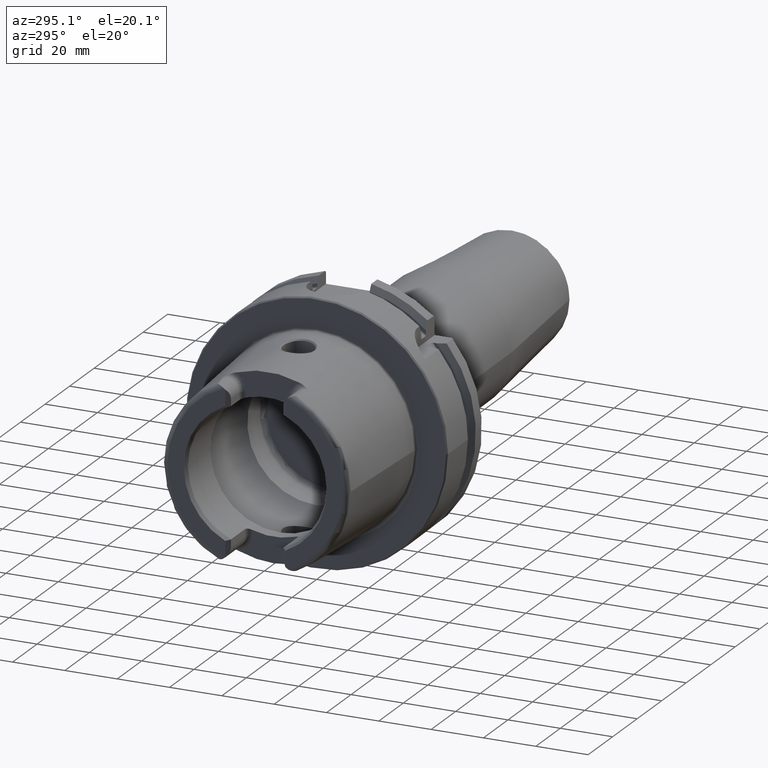
[diagram: clean part render]
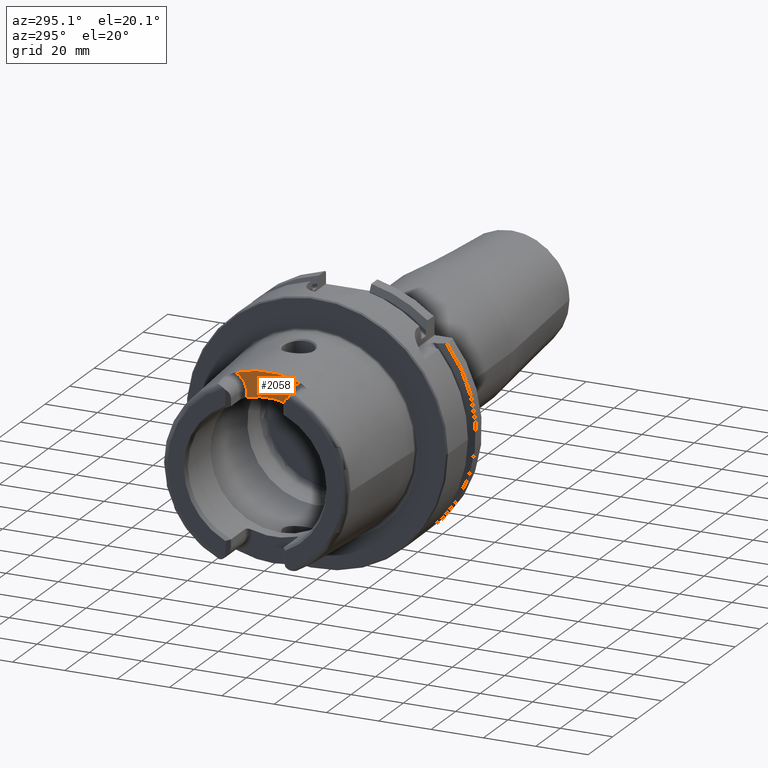
[diagram: same view with one face highlighted and labeled with its STEP entity id]
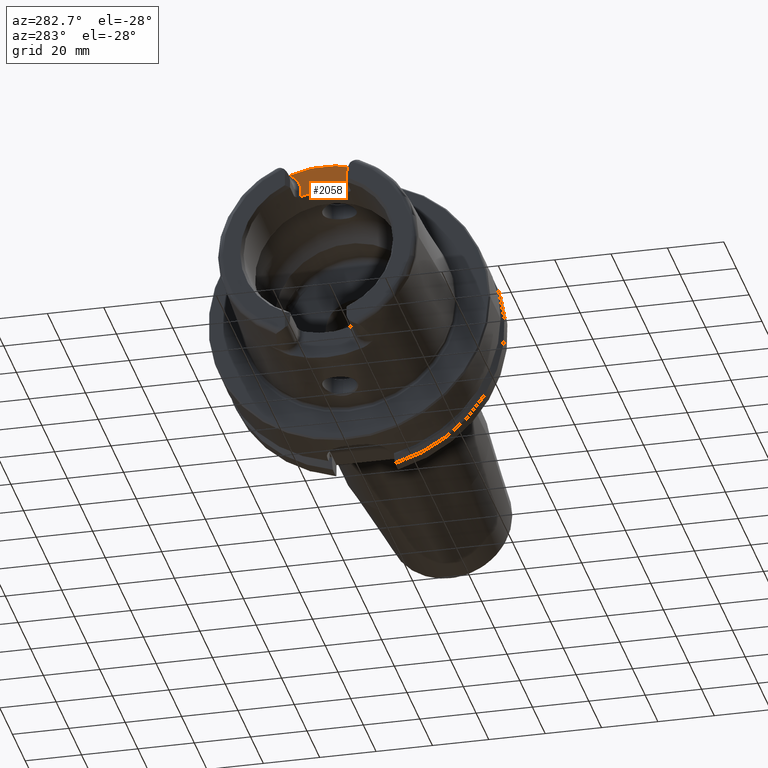
[diagram: same view with one face highlighted and labeled with its STEP entity id]
A machine part, auxiliary view. The second image highlights one B-rep face of the part: STEP entity #2058.
A second angle (auxiliary view) of the same face is appended — the face is thin or edge-on in the first view.
In plain terms, the highlighted planar face has unit normal (-1, 0, 0).
Its self-contained STEP definition (entity closure, byte-faithful):
#127=PLANE('',#2304);
#296=FACE_OUTER_BOUND('',#424,.T.);
#424=EDGE_LOOP('',(#1802,#1803,#1804,#1805,#1806,#1807));
#547=LINE('',#4316,#654);
#548=LINE('',#4345,#655);
#654=VECTOR('',#2787,10.);
#655=VECTOR('',#2800,10.);
#712=CIRCLE('',#2191,36.003493987976);
#755=CIRCLE('',#2277,6.88);
#757=CIRCLE('',#2280,6.88);
#769=CIRCLE('',#2305,26.5);
#884=VERTEX_POINT('',#3494);
#885=VERTEX_POINT('',#3511);
#976=VERTEX_POINT('',#4313);
#977=VERTEX_POINT('',#4315);
#978=VERTEX_POINT('',#4330);
#979=VERTEX_POINT('',#4334);
#1113=EDGE_CURVE('',#884,#885,#712,.T.);
#1251=EDGE_CURVE('',#976,#977,#547,.T.);
#1253=EDGE_CURVE('',#885,#976,#755,.T.);
#1255=EDGE_CURVE('',#978,#884,#757,.T.);
#1257=EDGE_CURVE('',#979,#978,#548,.T.);
#1278=EDGE_CURVE('',#977,#979,#769,.T.);
#1802=ORIENTED_EDGE('',*,*,#1253,.F.);
#1803=ORIENTED_EDGE('',*,*,#1113,.F.);
#1804=ORIENTED_EDGE('',*,*,#1255,.F.);
#1805=ORIENTED_EDGE('',*,*,#1257,.F.);
#1806=ORIENTED_EDGE('',*,*,#1278,.F.);
#1807=ORIENTED_EDGE('',*,*,#1251,.F.);
#2058=ADVANCED_FACE('',(#296),#127,.T.);
#2191=AXIS2_PLACEMENT_3D('',#3512,#2568,#2569);
#2277=AXIS2_PLACEMENT_3D('',#4328,#2790,#2791);
#2280=AXIS2_PLACEMENT_3D('',#4332,#2796,#2797);
#2304=AXIS2_PLACEMENT_3D('',#4403,#2852,#2853);
#2305=AXIS2_PLACEMENT_3D('',#4404,#2854,#2855);
#2568=DIRECTION('center_axis',(1.,0.,0.));
#2569=DIRECTION('ref_axis',(0.,1.,0.));
#2787=DIRECTION('',(0.,0.,-1.));
#2790=DIRECTION('center_axis',(-1.,0.,0.));
#2791=DIRECTION('ref_axis',(0.,0.564947834751706,0.82512662301574));
#2796=DIRECTION('center_axis',(-1.,0.,0.));
#2797=DIRECTION('ref_axis',(0.,-0.564947834751705,0.825126623015741));
#2800=DIRECTION('',(0.,0.,1.));
#2852=DIRECTION('center_axis',(-1.,0.,0.));
#2853=DIRECTION('ref_axis',(0.,0.,1.));
#2854=DIRECTION('center_axis',(-1.,0.,0.));
#2855=DIRECTION('ref_axis',(0.,1.,0.));
#3494=CARTESIAN_POINT('',(-40.,12.4227760464511,33.7923987701664));
#3511=CARTESIAN_POINT('',(-40.,-12.4227760464511,33.7923987701664));
#3512=CARTESIAN_POINT('Origin',(-40.,0.,0.));
#4313=CARTESIAN_POINT('',(-40.,-8.01,27.37));
#4315=CARTESIAN_POINT('',(-40.,-8.01,25.2604414054862));
#4316=CARTESIAN_POINT('',(-40.,-8.01,23.5));
#4328=CARTESIAN_POINT('Origin',(-40.,-14.89,27.37));
#4330=CARTESIAN_POINT('',(-40.,8.01,27.37));
#4332=CARTESIAN_POINT('Origin',(-40.,14.89,27.37));
#4334=CARTESIAN_POINT('',(-40.,8.01,25.2604414054862));
#4345=CARTESIAN_POINT('',(-40.,8.01,28.185));
#4403=CARTESIAN_POINT('Origin',(-40.,0.,29.));
#4404=CARTESIAN_POINT('Origin',(-40.,0.,0.));